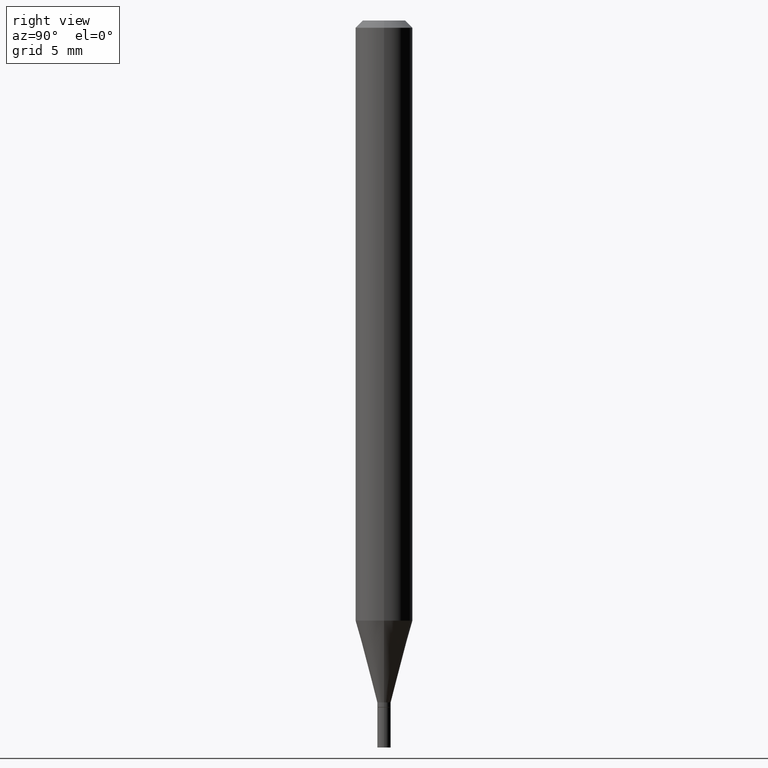
[diagram: clean part render]
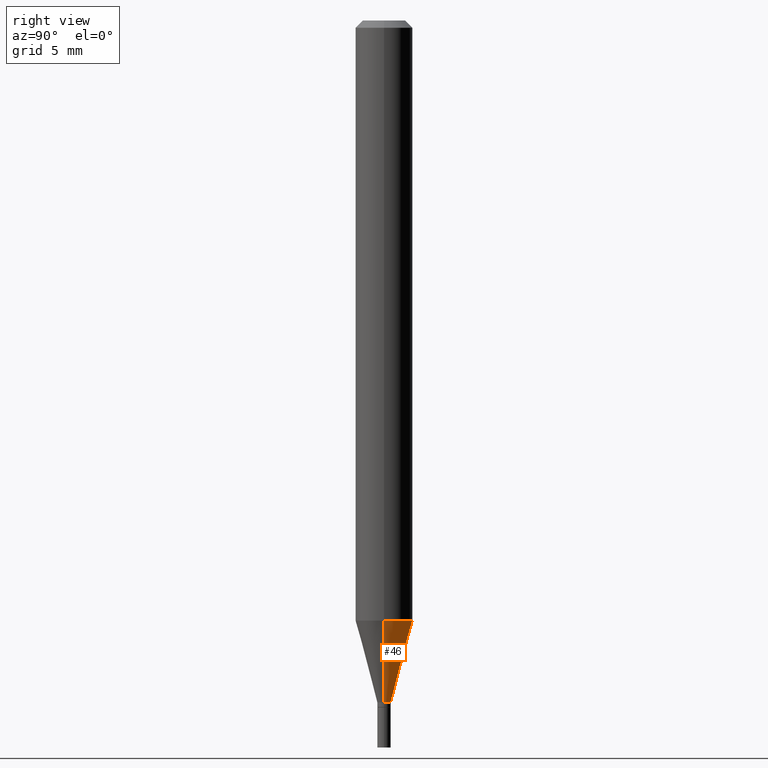
[diagram: same view with one face highlighted and labeled with its STEP entity id]
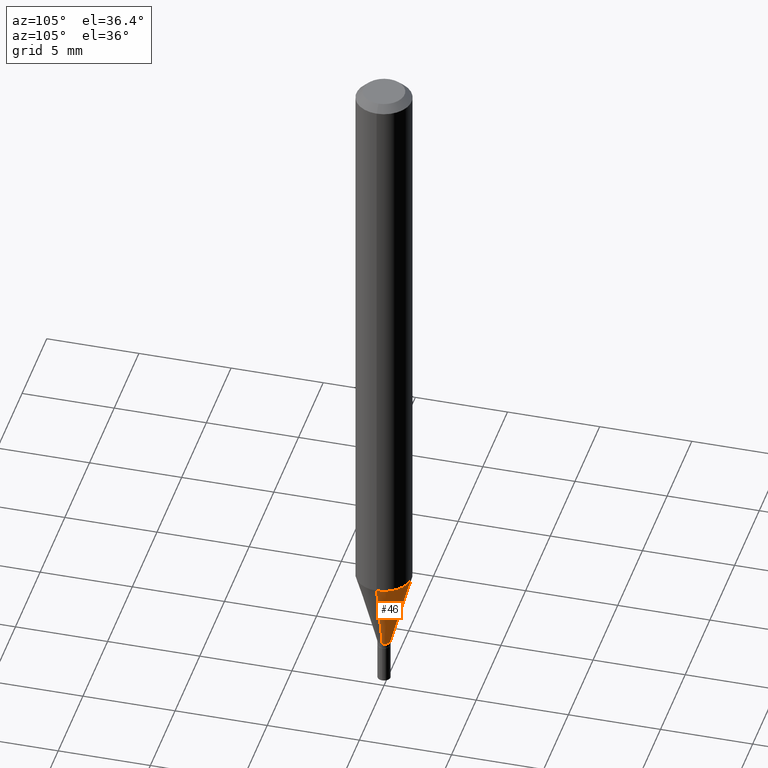
[diagram: same view with one face highlighted and labeled with its STEP entity id]
A machine part, right view. The second image highlights one B-rep face of the part: STEP entity #46.
A second angle (auxiliary view) of the same face is appended — the face is thin or edge-on in the first view.
In plain terms, the highlighted conical surface has half-angle 15 deg.
Its self-contained STEP definition (entity closure, byte-faithful):
#3 = CIRCLE ( 'NONE', #176, 0.01380000000000019232 ) ;
#13 = EDGE_CURVE ( 'NONE', #451, #388, #288, .T. ) ;
#26 = CARTESIAN_POINT ( 'NONE',  ( -0.01380000000000019232, -4.814459346217411032E-15, -1.407000000000000028 ) ) ;
#29 = AXIS2_PLACEMENT_3D ( 'NONE', #175, #91, #279 ) ;
#40 = CARTESIAN_POINT ( 'NONE',  ( 0.01380000000000019232, -5.008879128704377621E-15, -1.407000000000000028 ) ) ;
#46 = ADVANCED_FACE ( 'NONE', ( #458 ), #331, .T. ) ;
#51 = ORIENTED_EDGE ( 'NONE', *, *, #305, .T. ) ;
#54 = ORIENTED_EDGE ( 'NONE', *, *, #13, .F. ) ;
#91 = DIRECTION ( 'NONE',  ( -2.445468806185136597E-29, 3.491481338843145583E-15, 1.000000000000000000 ) ) ;
#101 = CARTESIAN_POINT ( 'NONE',  ( -0.05904999999999999832, -3.903313803087555062E-15, -1.238124700957509594 ) ) ;
#116 = CARTESIAN_POINT ( 'NONE',  ( 0.05904999999999999832, -4.735233234671267897E-15, -1.238124700957509594 ) ) ;
#140 = LINE ( 'NONE', #26, #411 ) ;
#146 = CARTESIAN_POINT ( 'NONE',  ( 0.01380000000000019232, -5.008879128704377621E-15, -1.407000000000000028 ) ) ;
#164 = DIRECTION ( 'NONE',  ( -2.445468806185136597E-29, 3.491481338843145583E-15, 1.000000000000000000 ) ) ;
#175 = CARTESIAN_POINT ( 'NONE',  ( 3.027795334358889940E-29, -4.322889288553894555E-15, -1.238124700957509594 ) ) ;
#176 = AXIS2_PLACEMENT_3D ( 'NONE', #205, #210, #389 ) ;
#192 = VERTEX_POINT ( 'NONE', #40 ) ;
#205 = CARTESIAN_POINT ( 'NONE',  ( 3.440774610302487541E-29, -4.912514243752305891E-15, -1.407000000000000028 ) ) ;
#210 = DIRECTION ( 'NONE',  ( -2.445468806185136597E-29, 3.491481338843145583E-15, 1.000000000000000000 ) ) ;
#233 = EDGE_LOOP ( 'NONE', ( #51, #450, #54, #302 ) ) ;
#242 = EDGE_CURVE ( 'NONE', #413, #388, #140, .T. ) ;
#249 = DIRECTION ( 'NONE',  ( -0.2588190451025214611, 5.211531920934550253E-15, 0.9659258262890679791 ) ) ;
#279 = DIRECTION ( 'NONE',  ( 1.000000000000000000, -6.982962677686273021E-15, 0.000000000000000000 ) ) ;
#288 = CIRCLE ( 'NONE', #29, 0.05904999999999999832 ) ;
#297 = DIRECTION ( 'NONE',  ( 0.2588190451025214611, 1.565188264969620982E-15, 0.9659258262890679791 ) ) ;
#302 = ORIENTED_EDGE ( 'NONE', *, *, #454, .F. ) ;
#305 = EDGE_CURVE ( 'NONE', #192, #413, #3, .T. ) ;
#318 = CARTESIAN_POINT ( 'NONE',  ( 3.440774610302487541E-29, -4.912514243752305891E-15, -1.407000000000000028 ) ) ;
#331 = CONICAL_SURFACE ( 'NONE', #446, 0.01380000000000019232, 0.2617993877991501850 ) ;
#365 = CARTESIAN_POINT ( 'NONE',  ( -0.01380000000000019232, -4.358886574652482258E-15, -1.407000000000000028 ) ) ;
#388 = VERTEX_POINT ( 'NONE', #101 ) ;
#389 = DIRECTION ( 'NONE',  ( 1.000000000000000000, -6.982962677686277755E-15, 0.000000000000000000 ) ) ;
#392 = DIRECTION ( 'NONE',  ( 1.000000000000000000, -6.982962677686277755E-15, 0.000000000000000000 ) ) ;
#411 = VECTOR ( 'NONE', #249, 39.37007874015748143 ) ;
#413 = VERTEX_POINT ( 'NONE', #365 ) ;
#420 = VECTOR ( 'NONE', #297, 39.37007874015748143 ) ;
#446 = AXIS2_PLACEMENT_3D ( 'NONE', #318, #164, #392 ) ;
#450 = ORIENTED_EDGE ( 'NONE', *, *, #242, .T. ) ;
#451 = VERTEX_POINT ( 'NONE', #116 ) ;
#454 = EDGE_CURVE ( 'NONE', #192, #451, #465, .T. ) ;
#458 = FACE_OUTER_BOUND ( 'NONE', #233, .T. ) ;
#465 = LINE ( 'NONE', #146, #420 ) ;